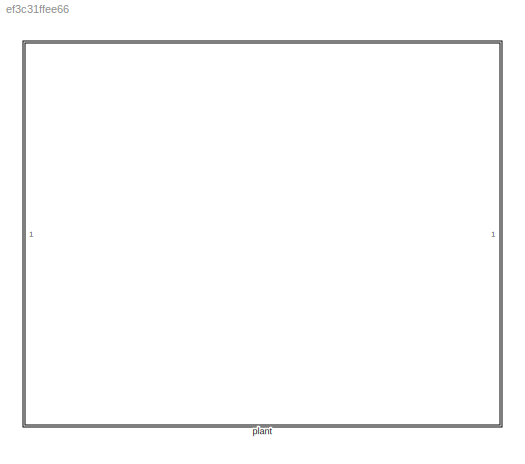
MODEL slx_ef3c31ffee66
KIND library
CONFIG AbsTol = auto
CONFIG EnableMultiTasking = off
CONFIG FixedStep = auto
CONFIG MaxStep = auto
CONFIG MinStep = auto
CONFIG RelTol = 1e-3
CONFIG SampleTimeConstraint = Unconstrained
CONFIG SolverName = VariableStepAuto
CONFIG StartTime = 0.0
CONFIG StopTime = 10.0
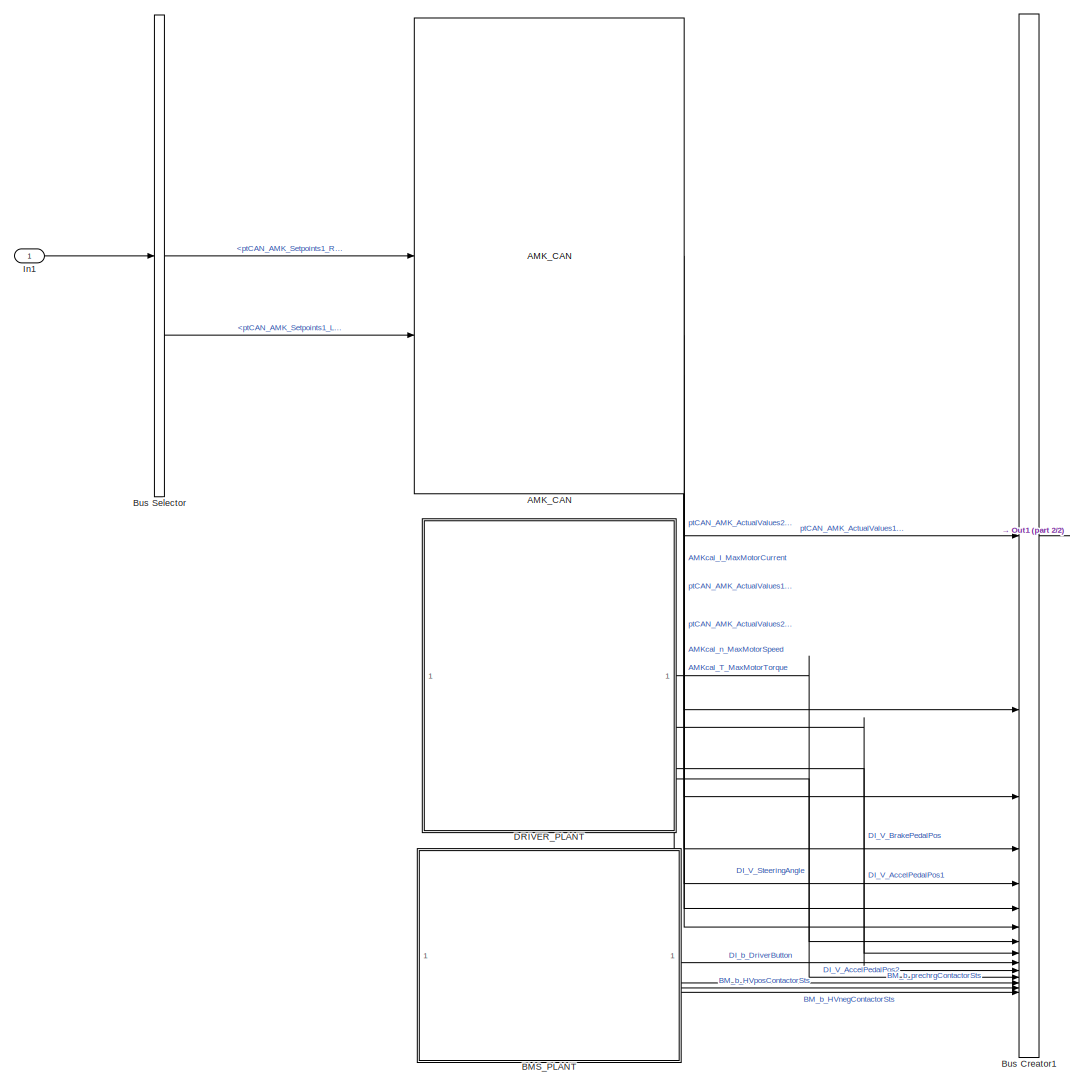
[diagram: plant - part 1/2, most of the canvas]
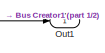
[diagram: plant - part 2/2, middle right region]
BLOCK [SubSystem] plant
BLOCK [Reference] plant/AMK_CAN  REF=AMK_CAN_lib/AMK_CAN
  SourceBlock = AMK_CAN_lib/AMK_CAN
  SourceType = SubSystem
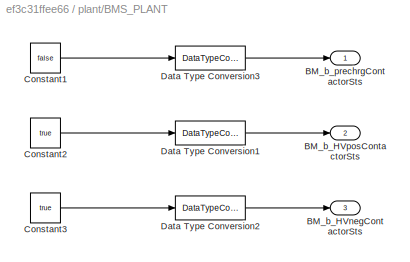
BLOCK [SubSystem] plant/BMS_PLANT
BLOCK [Outport] plant/BMS_PLANT/BM_b_HVnegContactorSts
  Port = 3
BLOCK [Outport] plant/BMS_PLANT/BM_b_HVposContactorSts
  Port = 2
BLOCK [Outport] plant/BMS_PLANT/BM_b_prechrgContactorSts
BLOCK [Constant] plant/BMS_PLANT/Constant1
  OutDataTypeStr = boolean
  Value = false
BLOCK [Constant] plant/BMS_PLANT/Constant2
  OutDataTypeStr = boolean
  Value = true
BLOCK [Constant] plant/BMS_PLANT/Constant3
  OutDataTypeStr = boolean
  Value = true
BLOCK [DataTypeConversion] plant/BMS_PLANT/Data Type Conversion1
  OutDataTypeStr = boolean
  RndMeth = Floor
  SaturateOnIntegerOverflow = off
BLOCK [DataTypeConversion] plant/BMS_PLANT/Data Type Conversion2
  OutDataTypeStr = boolean
  RndMeth = Floor
  SaturateOnIntegerOverflow = off
BLOCK [DataTypeConversion] plant/BMS_PLANT/Data Type Conversion3
  OutDataTypeStr = boolean
  RndMeth = Floor
  SaturateOnIntegerOverflow = off
BLOCK [BusCreator] plant/Bus Creator1
  DisplayOption = bar
  InheritFromInputs = on
  Inputs = 15
BLOCK [BusSelector] plant/Bus Selector
  OutputSignals = ptCAN_AMK_Setpoints1_Right,ptCAN_AMK_Setpoints1_Left
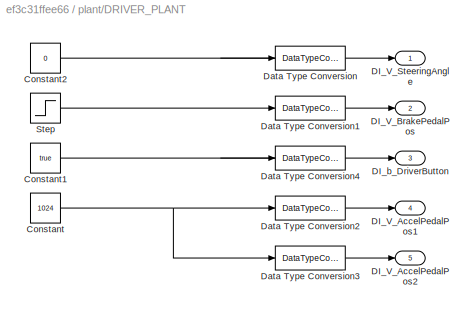
BLOCK [SubSystem] plant/DRIVER_PLANT
BLOCK [Constant] plant/DRIVER_PLANT/Constant
  Value = 1024
BLOCK [Constant] plant/DRIVER_PLANT/Constant1
  OutDataTypeStr = boolean
  Value = true
BLOCK [Constant] plant/DRIVER_PLANT/Constant2
  Value = 0
BLOCK [Outport] plant/DRIVER_PLANT/DI_V_AccelPedalPos1
  Port = 4
BLOCK [Outport] plant/DRIVER_PLANT/DI_V_AccelPedalPos2
  Port = 5
BLOCK [Outport] plant/DRIVER_PLANT/DI_V_BrakePedalPos
  Port = 2
BLOCK [Outport] plant/DRIVER_PLANT/DI_V_SteeringAngle
BLOCK [Outport] plant/DRIVER_PLANT/DI_b_DriverButton
  Port = 3
BLOCK [DataTypeConversion] plant/DRIVER_PLANT/Data Type Conversion
  OutDataTypeStr = int16
  RndMeth = Floor
  SaturateOnIntegerOverflow = off
BLOCK [DataTypeConversion] plant/DRIVER_PLANT/Data Type Conversion1
  OutDataTypeStr = int16
  RndMeth = Floor
  SaturateOnIntegerOverflow = off
BLOCK [DataTypeConversion] plant/DRIVER_PLANT/Data Type Conversion2
  OutDataTypeStr = int16
  RndMeth = Floor
  SaturateOnIntegerOverflow = off
BLOCK [DataTypeConversion] plant/DRIVER_PLANT/Data Type Conversion3
  OutDataTypeStr = int16
  RndMeth = Floor
  SaturateOnIntegerOverflow = off
BLOCK [DataTypeConversion] plant/DRIVER_PLANT/Data Type Conversion4
  OutDataTypeStr = boolean
  RndMeth = Floor
  SaturateOnIntegerOverflow = off
BLOCK [Step] plant/DRIVER_PLANT/Step
  After = 0
  Before = 75
  OutDataTypeStr = single
  SampleTime = 0
  Time = 2
BLOCK [Inport] plant/In1
BLOCK [Outport] plant/Out1
LINE plant/AMK_CAN:1 -> plant/Bus Creator1:1
LINE plant/AMK_CAN:2 -> plant/Bus Creator1:2
LINE plant/AMK_CAN:3 -> plant/Bus Creator1:3
LINE plant/AMK_CAN:4 -> plant/Bus Creator1:4
LINE plant/AMK_CAN:5 -> plant/Bus Creator1:5
LINE plant/AMK_CAN:6 -> plant/Bus Creator1:6
LINE plant/AMK_CAN:7 -> plant/Bus Creator1:7
LINE plant/BMS_PLANT/Constant1:1 -> plant/BMS_PLANT/Data Type Conversion3:1
LINE plant/BMS_PLANT/Constant2:1 -> plant/BMS_PLANT/Data Type Conversion1:1
LINE plant/BMS_PLANT/Constant3:1 -> plant/BMS_PLANT/Data Type Conversion2:1
LINE plant/BMS_PLANT/Data Type Conversion1:1 -> plant/BMS_PLANT/BM_b_HVposContactorSts:1
LINE plant/BMS_PLANT/Data Type Conversion2:1 -> plant/BMS_PLANT/BM_b_HVnegContactorSts:1
LINE plant/BMS_PLANT/Data Type Conversion3:1 -> plant/BMS_PLANT/BM_b_prechrgContactorSts:1
LINE plant/BMS_PLANT:1 -> plant/Bus Creator1:13
LINE plant/BMS_PLANT:2 -> plant/Bus Creator1:14
LINE plant/BMS_PLANT:3 -> plant/Bus Creator1:15
LINE plant/Bus Creator1:1 -> plant/Out1:1
LINE plant/Bus Selector:1 -> plant/AMK_CAN:1
LINE plant/Bus Selector:2 -> plant/AMK_CAN:2
LINE plant/DRIVER_PLANT/Constant1:1 -> plant/DRIVER_PLANT/Data Type Conversion4:1
LINE plant/DRIVER_PLANT/Constant2:1 -> plant/DRIVER_PLANT/Data Type Conversion:1
NET plant/DRIVER_PLANT/Constant:1 -> plant/DRIVER_PLANT/Data Type Conversion2:1, plant/DRIVER_PLANT/Data Type Conversion3:1
LINE plant/DRIVER_PLANT/Data Type Conversion1:1 -> plant/DRIVER_PLANT/DI_V_BrakePedalPos:1
LINE plant/DRIVER_PLANT/Data Type Conversion2:1 -> plant/DRIVER_PLANT/DI_V_AccelPedalPos1:1
LINE plant/DRIVER_PLANT/Data Type Conversion3:1 -> plant/DRIVER_PLANT/DI_V_AccelPedalPos2:1
LINE plant/DRIVER_PLANT/Data Type Conversion4:1 -> plant/DRIVER_PLANT/DI_b_DriverButton:1
LINE plant/DRIVER_PLANT/Data Type Conversion:1 -> plant/DRIVER_PLANT/DI_V_SteeringAngle:1
LINE plant/DRIVER_PLANT/Step:1 -> plant/DRIVER_PLANT/Data Type Conversion1:1
LINE plant/DRIVER_PLANT:1 -> plant/Bus Creator1:8
LINE plant/DRIVER_PLANT:2 -> plant/Bus Creator1:9
LINE plant/DRIVER_PLANT:3 -> plant/Bus Creator1:10
LINE plant/DRIVER_PLANT:4 -> plant/Bus Creator1:11
LINE plant/DRIVER_PLANT:5 -> plant/Bus Creator1:12
LINE plant/In1:1 -> plant/Bus Selector:1
note: NET lines group one-source signal fan-out (src -> all destinations, sorted); 1:1 wires keep LINE
